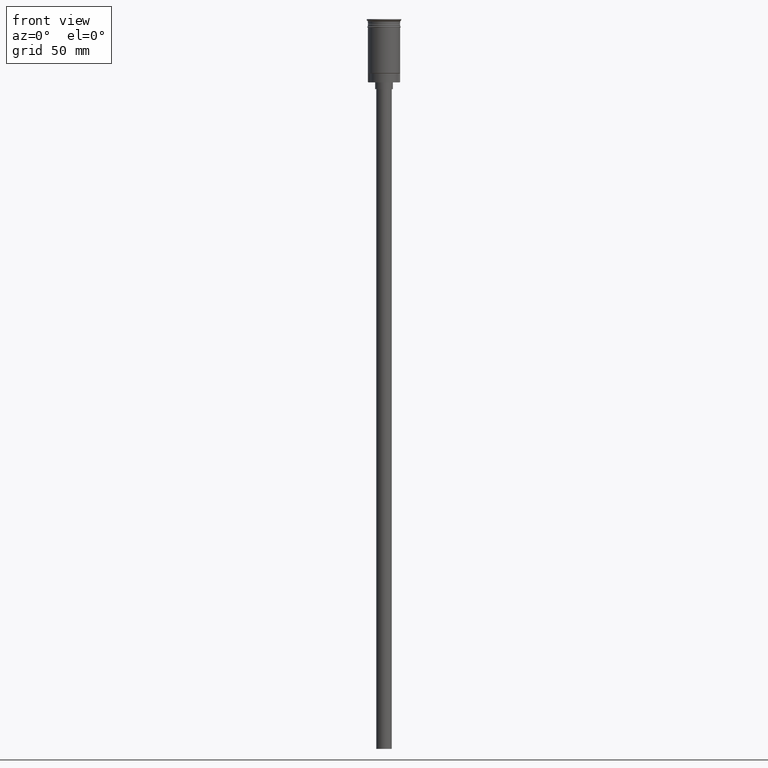
[diagram: clean part render]
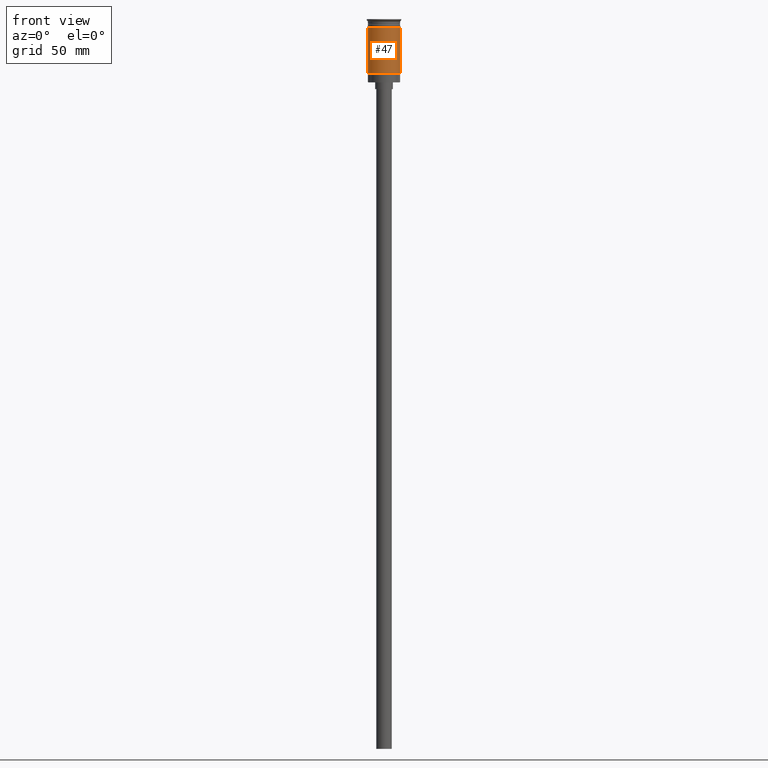
[diagram: same view with one face highlighted and labeled with its STEP entity id]
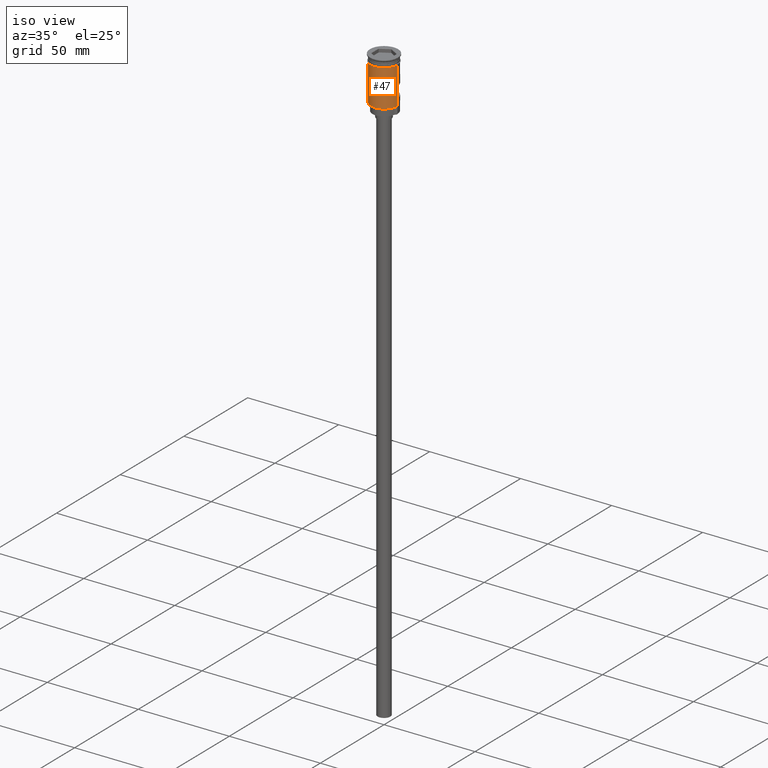
[diagram: same view with one face highlighted and labeled with its STEP entity id]
A machine part, front view. The second image highlights one B-rep face of the part: STEP entity #47.
A second angle (iso view) of the same face is appended — the face is thin or edge-on in the first view.
In plain terms, the highlighted cylindrical surface (edge-blend (fillet) strip) has radius 7.25 mm, axis along (-0, -0, 1).
Its self-contained STEP definition (entity closure, byte-faithful):
#45 = DIRECTION ( 'NONE',  ( -0.000000000000000000, -0.000000000000000000, 1.000000000000000000 ) ) ;
#47 = ADVANCED_FACE ( 'NONE', ( #1098 ), #1118, .T. ) ;
#170 = VERTEX_POINT ( 'NONE', #366 ) ;
#272 = ORIENTED_EDGE ( 'NONE', *, *, #1390, .F. ) ;
#286 = LINE ( 'NONE', #884, #879 ) ;
#304 = CARTESIAN_POINT ( 'NONE',  ( 0.000000000000000000, 0.000000000000000000, -3.799999999999998490 ) ) ;
#316 = EDGE_CURVE ( 'NONE', #1108, #170, #1153, .T. ) ;
#353 = ORIENTED_EDGE ( 'NONE', *, *, #1208, .T. ) ;
#356 = CARTESIAN_POINT ( 'NONE',  ( 0.000000000000000000, 0.000000000000000000, 0.000000000000000000 ) ) ;
#366 = CARTESIAN_POINT ( 'NONE',  ( 7.249999999999999112, 0.000000000000000000, -3.799999999999998490 ) ) ;
#380 = CIRCLE ( 'NONE', #682, 7.249999999999997335 ) ;
#397 = DIRECTION ( 'NONE',  ( -0.000000000000000000, -0.000000000000000000, 1.000000000000000000 ) ) ;
#427 = CARTESIAN_POINT ( 'NONE',  ( -7.249999999999994671, 0.000000000000000000, -24.29999999999998295 ) ) ;
#527 = ORIENTED_EDGE ( 'NONE', *, *, #316, .F. ) ;
#595 = DIRECTION ( 'NONE',  ( -0.000000000000000000, -0.000000000000000000, 1.000000000000000000 ) ) ;
#649 = CARTESIAN_POINT ( 'NONE',  ( 7.249999999999997335, 8.878689293818308102E-16, -24.29999999999998295 ) ) ;
#682 = AXIS2_PLACEMENT_3D ( 'NONE', #833, #45, #700 ) ;
#700 = DIRECTION ( 'NONE',  ( -1.000000000000000000, 0.000000000000000000, 0.000000000000000000 ) ) ;
#760 = EDGE_LOOP ( 'NONE', ( #272, #1117, #353, #527 ) ) ;
#787 = AXIS2_PLACEMENT_3D ( 'NONE', #356, #595, #1603 ) ;
#819 = DIRECTION ( 'NONE',  ( -0.000000000000000000, -0.000000000000000000, 1.000000000000000000 ) ) ;
#833 = CARTESIAN_POINT ( 'NONE',  ( 0.000000000000000000, 0.000000000000000000, -24.29999999999998295 ) ) ;
#879 = VECTOR ( 'NONE', #1136, 1000.000000000000000 ) ;
#884 = CARTESIAN_POINT ( 'NONE',  ( 7.249999999999997335, 0.000000000000000000, 0.000000000000000000 ) ) ;
#919 = CARTESIAN_POINT ( 'NONE',  ( -7.249999999999997335, 8.878689293818306130E-16, 0.000000000000000000 ) ) ;
#935 = EDGE_CURVE ( 'NONE', #1001, #1140, #380, .T. ) ;
#1001 = VERTEX_POINT ( 'NONE', #427 ) ;
#1067 = LINE ( 'NONE', #919, #1309 ) ;
#1098 = FACE_OUTER_BOUND ( 'NONE', #760, .T. ) ;
#1108 = VERTEX_POINT ( 'NONE', #1241 ) ;
#1117 = ORIENTED_EDGE ( 'NONE', *, *, #935, .T. ) ;
#1118 = CYLINDRICAL_SURFACE ( 'NONE', #787, 7.249999999999997335 ) ;
#1136 = DIRECTION ( 'NONE',  ( -0.000000000000000000, -0.000000000000000000, 1.000000000000000000 ) ) ;
#1139 = DIRECTION ( 'NONE',  ( 1.000000000000000000, 0.000000000000000000, 0.000000000000000000 ) ) ;
#1140 = VERTEX_POINT ( 'NONE', #649 ) ;
#1153 = CIRCLE ( 'NONE', #1239, 7.249999999999999112 ) ;
#1208 = EDGE_CURVE ( 'NONE', #1140, #170, #286, .T. ) ;
#1239 = AXIS2_PLACEMENT_3D ( 'NONE', #304, #397, #1139 ) ;
#1241 = CARTESIAN_POINT ( 'NONE',  ( -7.250000000000000000, 8.878689293818310074E-16, -3.799999999999998490 ) ) ;
#1309 = VECTOR ( 'NONE', #819, 1000.000000000000000 ) ;
#1390 = EDGE_CURVE ( 'NONE', #1001, #1108, #1067, .T. ) ;
#1603 = DIRECTION ( 'NONE',  ( 1.000000000000000000, 0.000000000000000000, 0.000000000000000000 ) ) ;